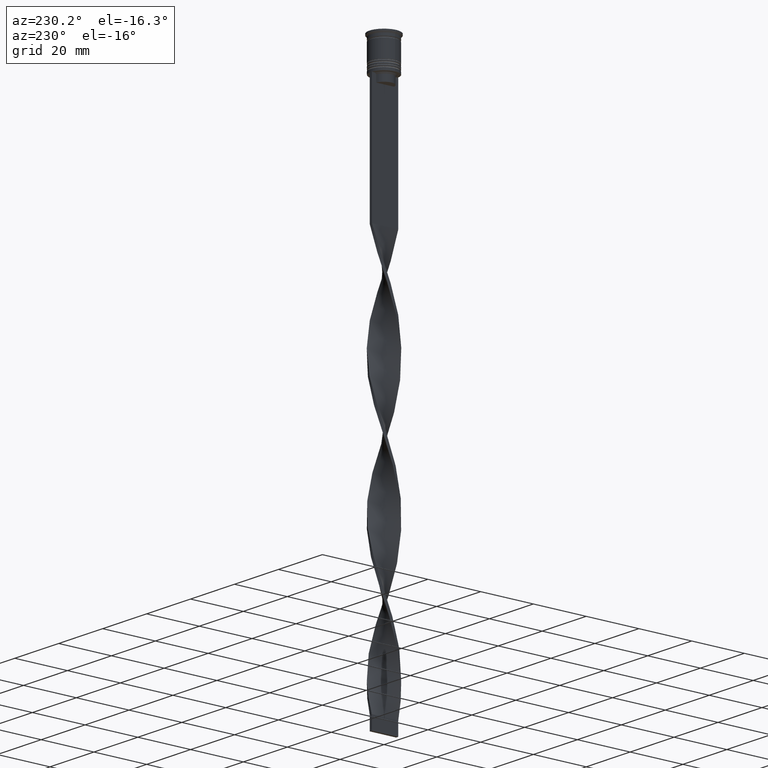
[diagram: clean part render]
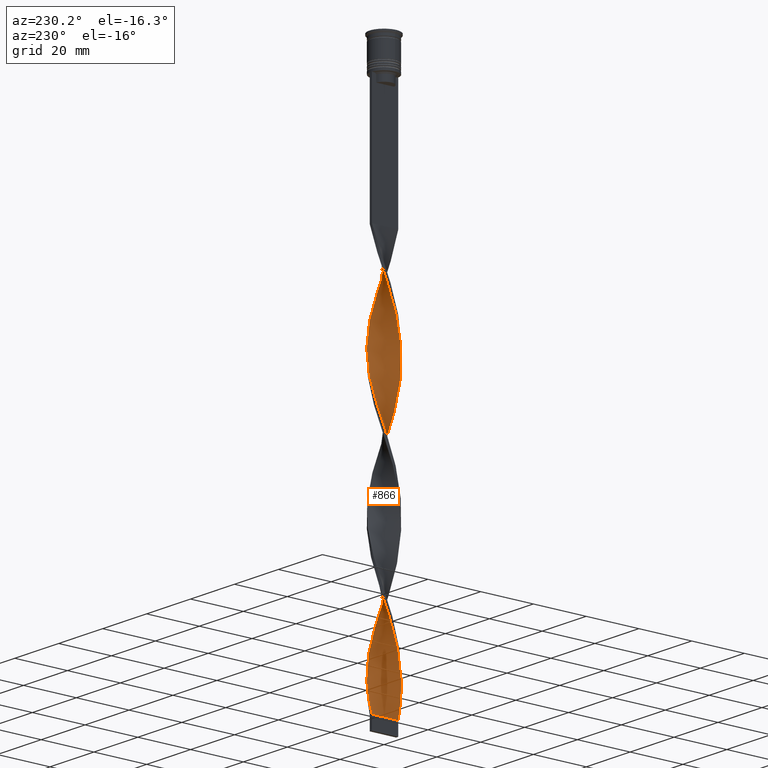
[diagram: same view with one face highlighted and labeled with its STEP entity id]
A machine part, auxiliary view. The second image highlights one B-rep face of the part: STEP entity #866.
In plain terms, the highlighted face is a freeform B-spline surface patch.
Its self-contained STEP definition (entity closure, byte-faithful):
#4 = CARTESIAN_POINT ( 'NONE',  ( -2.272444445637943122, -4.481740313928203712, -201.6568627450980387 ) ) ;
#8 = CARTESIAN_POINT ( 'NONE',  ( 1.410234138924802538, -4.822990739511222813, -160.7549019607842808 ) ) ;
#30 = CARTESIAN_POINT ( 'NONE',  ( -4.252947278887042160, -2.676273424560223546, -140.3039215686274588 ) ) ;
#36 = CARTESIAN_POINT ( 'NONE',  ( 0.5000000000000000000, -4.999999999999999112, -157.8333333333333144 ) ) ;
#52 = CARTESIAN_POINT ( 'NONE',  ( -1.857150046639456153, 4.692313302143462650, -112.5490196078431495 ) ) ;
#56 = CARTESIAN_POINT ( 'NONE',  ( 5.021420494578371141, 0.5021420494578369143, -182.6666666666666572 ) ) ;
#60 = CARTESIAN_POINT ( 'NONE',  ( 0.4272610392408998647, -5.006740257327794374, -111.0882352941176379 ) ) ;
#70 = CARTESIAN_POINT ( 'NONE',  ( 4.252947278887042160, 2.676273424560221770, -90.63725490196078738 ) ) ;
#78 = CARTESIAN_POINT ( 'NONE',  ( -4.945959710900137196, -0.8874021287740051500, -87.71568627450979250 ) ) ;
#95 = CARTESIAN_POINT ( 'NONE',  ( -2.687738844636428759, 4.271167325712942997, -115.4705882352941018 ) ) ;
#116 = CARTESIAN_POINT ( 'NONE',  ( -5.028189627835275566, 0.4290914677958205803, -130.0784313725490335 ) ) ;
#118 = CARTESIAN_POINT ( 'NONE',  ( 0.8912038472716534709, 4.967148691534572613, -203.1176470588235361 ) ) ;
#123 = CARTESIAN_POINT ( 'NONE',  ( -4.533641475362164996, -2.216507476658135189, -92.09803921568628482 ) ) ;
#124 = CARTESIAN_POINT ( 'NONE',  ( -4.672296720828054362, 1.849227771946823751, -78.95098039215686470 ) ) ;
#127 = CARTESIAN_POINT ( 'NONE',  ( 3.426799919866744926, 3.704571868705843762, -147.6078431372548891 ) ) ;
#136 = CARTESIAN_POINT ( 'NONE',  ( 4.252947278887042160, 2.676273424560221770, -189.9705882352941160 ) ) ;
#144 = CARTESIAN_POINT ( 'NONE',  ( 4.004954025026647990, -3.070367026697017110, -124.2352941176470580 ) ) ;
#154 = CARTESIAN_POINT ( 'NONE',  ( 4.533641475362163220, -2.216507476658133413, -173.9019607843137294 ) ) ;
#166 = CARTESIAN_POINT ( 'NONE',  ( -4.291403454590827060, -2.614164568256162280, -93.55882352941176805 ) ) ;
#167 = CARTESIAN_POINT ( 'NONE',  ( 4.049165433819487347, -3.011821659854191147, -71.64705882352943433 ) ) ;
#176 = CARTESIAN_POINT ( 'NONE',  ( -1.339972216233586755, -4.842981980115355078, -151.9901960784313530 ) ) ;
#182 = CARTESIAN_POINT ( 'NONE',  ( 4.863729793964998827, -1.345712789752187000, -77.49019607843138147 ) ) ;
#183 = CARTESIAN_POINT ( 'NONE',  ( -0.4999999999999993339, 4.999999999999999112, -207.5000000000000000 ) ) ;
#188 = CARTESIAN_POINT ( 'NONE',  ( 4.252947278887044824, -2.676273424560221770, -125.6960784313725412 ) ) ;
#191 = CARTESIAN_POINT ( 'NONE',  ( 4.843652908908670618, 1.416275721470217741, -185.5882352941176237 ) ) ;
#196 = CARTESIAN_POINT ( 'NONE',  ( 3.426799919866744482, 3.704571868705843762, -147.6078431372548891 ) ) ;
#197 = CARTESIAN_POINT ( 'NONE',  ( 3.737982676843115915, 3.358196764280017899, -146.1470588235294201 ) ) ;
#207 = CARTESIAN_POINT ( 'NONE',  ( 5.024805061206825130, -0.03652529083100948537, -134.4607843137254974 ) ) ;
#219 = CARTESIAN_POINT ( 'NONE',  ( -1.410234138924802982, -4.822990739511224589, -204.5784313725490335 ) ) ;
#228 = CARTESIAN_POINT ( 'NONE',  ( -2.272444445637943122, -4.481740313928203712, -102.3235294117646959 ) ) ;
#241 = CARTESIAN_POINT ( 'NONE',  ( -4.945959710900137196, -0.8874021287740051500, -187.0490196078431211 ) ) ;
#259 = CARTESIAN_POINT ( 'NONE',  ( -4.533641475362163220, 2.216507476658134745, -124.2352941176470580 ) ) ;
#274 = CARTESIAN_POINT ( 'NONE',  ( -3.737982676843116803, -3.358196764280017010, -195.8137254901960773 ) ) ;
#278 = CARTESIAN_POINT ( 'NONE',  ( 4.932536701743520879, 0.9592088854640268281, -84.79411764705882604 ) ) ;
#296 = CARTESIAN_POINT ( 'NONE',  ( -5.021420494578373805, 0.5021420494578375804, -182.6666666666666856 ) ) ;
#300 = CARTESIAN_POINT ( 'NONE',  ( 5.021420494578371141, 0.5021420494578369143, -83.33333333333332860 ) ) ;
#320 = CARTESIAN_POINT ( 'NONE',  ( -3.688768818211570100, -3.412181795536400664, -143.2254901960784537 ) ) ;
#324 = CARTESIAN_POINT ( 'NONE',  ( 4.672296720828054362, -1.849227771946825527, -128.6176470588235361 ) ) ;
#336 = CARTESIAN_POINT ( 'NONE',  ( -4.843652908908670618, -1.416275721470218185, -135.9215686274509665 ) ) ;
#340 = CARTESIAN_POINT ( 'NONE',  ( 0.03668176878985138917, -5.046331823121015248, -156.3725490196078454 ) ) ;
#359 = CARTESIAN_POINT ( 'NONE',  ( 4.863729793964998827, -1.345712789752187000, -77.49019607843136725 ) ) ;
#371 = CARTESIAN_POINT ( 'NONE',  ( -4.932536701743521768, 0.9592088854640273832, -81.87254901960783116 ) ) ;
#372 = CARTESIAN_POINT ( 'NONE',  ( 5.021420494578372917, -0.5021420494578382465, -133.0000000000000000 ) ) ;
#381 = CARTESIAN_POINT ( 'NONE',  ( 4.698685634663579691, -1.781110133205159762, -76.02941176470586981 ) ) ;
#391 = CARTESIAN_POINT ( 'NONE',  ( -5.021420494578372917, 0.5021420494578375804, -83.33333333333332860 ) ) ;
#399 = CARTESIAN_POINT ( 'NONE',  ( -0.03668176878985203448, 5.046331823121015248, -106.7058823529411882 ) ) ;
#401 = CARTESIAN_POINT ( 'NONE',  ( -0.03668176878985203448, 5.046331823121015248, -206.0392156862745026 ) ) ;
#405 = FACE_OUTER_BOUND ( 'NONE', #653, .T. ) ;
#417 = CARTESIAN_POINT ( 'NONE',  ( -4.533641475362163220, 2.216507476658134745, -124.2352941176470580 ) ) ;
#426 = CARTESIAN_POINT ( 'NONE',  ( -4.863729793965000603, -1.345712789752187222, -89.17647058823527573 ) ) ;
#445 = CARTESIAN_POINT ( 'NONE',  ( -1.339972216233586977, 4.842981980115355967, -64.34313725490196134 ) ) ;
#450 = CARTESIAN_POINT ( 'NONE',  ( -0.5000000000000006661, -5.000000000000000888, -207.5000000000000000 ) ) ;
#465 = CARTESIAN_POINT ( 'NONE',  ( -0.4272610392409009750, 5.006740257327794374, -160.7549019607842808 ) ) ;
#475 = CARTESIAN_POINT ( 'NONE',  ( 4.004954025026647102, 3.070367026697015778, -191.4313725490196134 ) ) ;
#488 = CARTESIAN_POINT ( 'NONE',  ( -4.843652908908672394, 1.416275721470217963, -179.7450980392157192 ) ) ;
#495 = CARTESIAN_POINT ( 'NONE',  ( 2.687738844636428759, -4.271167325712942997, -165.1372549019608016 ) ) ;
#500 = CARTESIAN_POINT ( 'NONE',  ( -1.788740585195521815, 4.718815268696139320, -165.1372549019608016 ) ) ;
#509 = CARTESIAN_POINT ( 'NONE',  ( 4.945959710900135420, -0.8874021287740040398, -178.2843137254901933 ) ) ;
#517 = CARTESIAN_POINT ( 'NONE',  ( -4.291403454590827060, -2.614164568256162280, -192.8921568627450824 ) ) ;
#539 = CARTESIAN_POINT ( 'NONE',  ( -5.024805061206825130, 0.03652529083100775065, -184.1274509803921546 ) ) ;
#562 = CARTESIAN_POINT ( 'NONE',  ( 0.8912038472716534709, 4.967148691534572613, -103.7843137254901933 ) ) ;
#580 = CARTESIAN_POINT ( 'NONE',  ( 4.291403454590825284, -2.614164568256161836, -172.4411764705882035 ) ) ;
#595 = CARTESIAN_POINT ( 'NONE',  ( -4.698685634663581467, -1.781110133205160206, -189.9705882352941160 ) ) ;
#599 = CARTESIAN_POINT ( 'NONE',  ( -4.932536701743520879, -0.9592088854640250517, -134.4607843137254974 ) ) ;
#606 = CARTESIAN_POINT ( 'NONE',  ( 4.843652908908673282, -1.416275721470216187, -130.0784313725490335 ) ) ;
#623 = CARTESIAN_POINT ( 'NONE',  ( -4.698685634663580579, 1.781110133205158430, -125.6960784313725412 ) ) ;
#635 = CARTESIAN_POINT ( 'NONE',  ( -1.410234138924801428, 4.822990739511222813, -111.0882352941176379 ) ) ;
#639 = CARTESIAN_POINT ( 'NONE',  ( -4.049165433819488236, 3.011821659854190703, -121.3137254901960631 ) ) ;
#644 = LINE ( 'NONE', #3388, #3685 ) ;
#653 = EDGE_LOOP ( 'NONE', ( #2607, #3656, #967, #2386 ) ) ;
#654 = CARTESIAN_POINT ( 'NONE',  ( 0.5000000000000000000, -4.999999999999999112, -58.50000000000000000 ) ) ;
#658 = CARTESIAN_POINT ( 'NONE',  ( -0.4999999999999993339, 4.999999999999999112, -207.5000000000000000 ) ) ;
#680 = CARTESIAN_POINT ( 'NONE',  ( 3.057269382251585288, -3.987869597209392936, -67.26470588235292780 ) ) ;
#688 = CARTESIAN_POINT ( 'NONE',  ( 4.500940532747438994, -2.282179822423430871, -127.1568627450980102 ) ) ;
#698 = CARTESIAN_POINT ( 'NONE',  ( 4.672296720828052585, 1.849227771946823973, -87.71568627450979250 ) ) ;
#715 = CARTESIAN_POINT ( 'NONE',  ( 0.4272610392409007529, 5.006740257327792598, -105.2450980392156765 ) ) ;
#717 = CARTESIAN_POINT ( 'NONE',  ( 4.500940532747437217, 2.282179822423429982, -188.5098039215686185 ) ) ;
#721 = CARTESIAN_POINT ( 'NONE',  ( -3.057269382251586176, -3.987869597209393824, -99.40196078431372939 ) ) ;
#744 = VERTEX_POINT ( 'NONE', #3917 ) ;
#745 = CARTESIAN_POINT ( 'NONE',  ( -2.998973759622457269, 4.031892407926575217, -70.18627450980390847 ) ) ;
#763 = CARTESIAN_POINT ( 'NONE',  ( 3.426799919866742705, -3.704571868705843318, -68.72549019607842524 ) ) ;
#774 = CARTESIAN_POINT ( 'NONE',  ( 3.688768818211569211, 3.412181795536400664, -192.8921568627450824 ) ) ;
#780 = CARTESIAN_POINT ( 'NONE',  ( -4.698685634663581467, -1.781110133205160206, -90.63725490196078738 ) ) ;
#781 = CARTESIAN_POINT ( 'NONE',  ( 4.533641475362163220, -2.216507476658133413, -74.56862745098038658 ) ) ;
#785 = CARTESIAN_POINT ( 'NONE',  ( -3.737982676843116803, -3.358196764280017010, -96.48039215686274872 ) ) ;
#786 = CARTESIAN_POINT ( 'NONE',  ( -3.057269382251586176, -3.987869597209393824, -99.40196078431372939 ) ) ;
#792 = CARTESIAN_POINT ( 'NONE',  ( -1.788740585195520039, -4.718815268696138432, -150.5294117647058840 ) ) ;
#806 = CARTESIAN_POINT ( 'NONE',  ( 5.028189627835276454, -0.4290914677958224122, -80.41176470588234793 ) ) ;
#821 = CARTESIAN_POINT ( 'NONE',  ( 4.049165433819487347, 3.011821659854193811, -144.6862745098039227 ) ) ;
#833 = CARTESIAN_POINT ( 'NONE',  ( -0.8912038472716528048, 4.967148691534573501, -162.2156862745098351 ) ) ;
#836 = CARTESIAN_POINT ( 'NONE',  ( 3.737982676843115915, 3.358196764280017899, -146.1470588235294201 ) ) ;
#851 = CARTESIAN_POINT ( 'NONE',  ( -4.252947278887043936, 2.676273424560223102, -175.3627450980391984 ) ) ;
#857 = CARTESIAN_POINT ( 'NONE',  ( 1.339972216233586311, 4.842981980115355078, -102.3235294117646959 ) ) ;
#866 = ADVANCED_FACE ( 'NONE', ( #405 ), #1349, .T. ) ;
#873 = CARTESIAN_POINT ( 'NONE',  ( -4.932536701743521768, 0.9592088854640273832, -181.2058823529411598 ) ) ;
#878 = CARTESIAN_POINT ( 'NONE',  ( 3.057269382251585288, -3.987869597209392936, -166.5980392156862706 ) ) ;
#886 = CARTESIAN_POINT ( 'NONE',  ( -4.004954025026648878, 3.070367026697015778, -74.56862745098038658 ) ) ;
#896 = CARTESIAN_POINT ( 'NONE',  ( -1.410234138924801428, 4.822990739511222813, -111.0882352941176379 ) ) ;
#916 = CARTESIAN_POINT ( 'NONE',  ( 5.024805061206822465, 0.03652529083100720941, -81.87254901960783116 ) ) ;
#931 = CARTESIAN_POINT ( 'NONE',  ( -1.788740585195521815, 4.718815268696139320, -65.80392156862745878 ) ) ;
#941 = CARTESIAN_POINT ( 'NONE',  ( -3.737982676843115026, 3.358196764280016566, -119.8529411764705799 ) ) ;
#946 = CARTESIAN_POINT ( 'NONE',  ( -4.672296720828054362, 1.849227771946823751, -78.95098039215686470 ) ) ;
#955 = CARTESIAN_POINT ( 'NONE',  ( -3.372583611396488656, -3.753996564375789990, -144.6862745098039227 ) ) ;
#959 = CARTESIAN_POINT ( 'NONE',  ( 2.207052246521970851, 4.514301760086748772, -198.7352941176470722 ) ) ;
#967 = ORIENTED_EDGE ( 'NONE', *, *, #3412, .F. ) ;
#974 = CARTESIAN_POINT ( 'NONE',  ( 2.687738844636428759, -4.271167325712942997, -65.80392156862745878 ) ) ;
#978 = CARTESIAN_POINT ( 'NONE',  ( 4.004954025026647102, 3.070367026697015778, -191.4313725490196134 ) ) ;
#983 = CARTESIAN_POINT ( 'NONE',  ( -4.049165433819489124, -3.011821659854192479, -95.01960784313725128 ) ) ;
#995 = CARTESIAN_POINT ( 'NONE',  ( 5.028189627835276454, -0.4290914677958224122, -80.41176470588234793 ) ) ;
#998 = CARTESIAN_POINT ( 'NONE',  ( 4.672296720828052585, 1.849227771946823973, -187.0490196078431211 ) ) ;
#1002 = CARTESIAN_POINT ( 'NONE',  ( -3.426799919866744037, -3.704571868705844206, -97.94117647058824616 ) ) ;
#1009 = CARTESIAN_POINT ( 'NONE',  ( -3.057269382251585732, 3.987869597209392047, -116.9313725490195992 ) ) ;
#1018 = CARTESIAN_POINT ( 'NONE',  ( -2.207052246521971739, 4.514301760086749660, -67.26470588235292780 ) ) ;
#1024 = CARTESIAN_POINT ( 'NONE',  ( -0.4999999999999993339, 4.999999999999999112, -207.5000000000000000 ) ) ;
#1027 = CARTESIAN_POINT ( 'NONE',  ( 3.426799919866743149, -3.704571868705843318, -168.0588235294117680 ) ) ;
#1035 = CARTESIAN_POINT ( 'NONE',  ( -3.688768818211570100, 3.412181795536402440, -73.10784313725488914 ) ) ;
#1049 = CARTESIAN_POINT ( 'NONE',  ( 1.788740585195521593, 4.718815268696137544, -200.1960784313725696 ) ) ;
#1057 = CARTESIAN_POINT ( 'NONE',  ( -4.500940532747438994, 2.282179822423430871, -77.49019607843138147 ) ) ;
#1075 = CARTESIAN_POINT ( 'NONE',  ( -3.688768818211570100, 3.412181795536402440, -172.4411764705882035 ) ) ;
#1084 = CARTESIAN_POINT ( 'NONE',  ( -0.4272610392408992541, -5.006740257327792598, -154.9117647058823479 ) ) ;
#1090 = CARTESIAN_POINT ( 'NONE',  ( 4.945959710900135420, -0.8874021287740040398, -78.95098039215686470 ) ) ;
#1109 = CARTESIAN_POINT ( 'NONE',  ( 4.863729793965001491, 1.345712789752185889, -138.8431372549019045 ) ) ;
#1124 = CARTESIAN_POINT ( 'NONE',  ( -3.057269382251586176, -3.987869597209393824, -198.7352941176470722 ) ) ;
#1142 = CARTESIAN_POINT ( 'NONE',  ( -1.857150046639457708, -4.692313302143463538, -203.1176470588235361 ) ) ;
#1148 = VERTEX_POINT ( 'NONE', #450 ) ;
#1152 = CARTESIAN_POINT ( 'NONE',  ( -2.998973759622457269, 4.031892407926575217, -70.18627450980390847 ) ) ;
#1164 = CARTESIAN_POINT ( 'NONE',  ( 2.998973759622456825, 4.031892407926573441, -96.48039215686274872 ) ) ;
#1185 = CARTESIAN_POINT ( 'NONE',  ( -4.843652908908672394, 1.416275721470217741, -179.7450980392157476 ) ) ;
#1189 = CARTESIAN_POINT ( 'NONE',  ( -5.024805061206823353, -0.03652529083100779922, -131.5392156862745310 ) ) ;
#1208 = CARTESIAN_POINT ( 'NONE',  ( -4.945959710900135420, 0.8874021287740058161, -128.6176470588235361 ) ) ;
#1226 = CARTESIAN_POINT ( 'NONE',  ( 0.4272610392409007529, 5.006740257327792598, -105.2450980392156765 ) ) ;
#1234 = CARTESIAN_POINT ( 'NONE',  ( -4.252947278887043936, 2.676273424560223102, -76.02941176470586981 ) ) ;
#1246 = CARTESIAN_POINT ( 'NONE',  ( -4.945959710900135420, 0.8874021287740058161, -128.6176470588235361 ) ) ;
#1250 = CARTESIAN_POINT ( 'NONE',  ( -0.4272610392408992541, -5.006740257327792598, -154.9117647058823479 ) ) ;
#1265 = CARTESIAN_POINT ( 'NONE',  ( -3.426799919866742261, 3.704571868705843318, -118.3921568627451109 ) ) ;
#1269 = CARTESIAN_POINT ( 'NONE',  ( 4.932536701743520879, 0.9592088854640268281, -184.1274509803921546 ) ) ;
#1274 = CARTESIAN_POINT ( 'NONE',  ( -5.021420494578373805, 0.5021420494578375804, -83.33333333333332860 ) ) ;
#1275 = CARTESIAN_POINT ( 'NONE',  ( 2.998973759622457269, -4.031892407926575217, -119.8529411764705799 ) ) ;
#1287 = CARTESIAN_POINT ( 'NONE',  ( 2.625363907848422773, 4.309788251477359111, -97.94117647058824616 ) ) ;
#1312 = CARTESIAN_POINT ( 'NONE',  ( 5.024805061206822465, 0.03652529083100720941, -81.87254901960783116 ) ) ;
#1319 = CARTESIAN_POINT ( 'NONE',  ( 0.5000000000000000000, 5.000000000000000888, -58.50000000000000000 ) ) ;
#1330 = CARTESIAN_POINT ( 'NONE',  ( 5.021420494578372029, 0.5021420494578369143, -182.6666666666666856 ) ) ;
#1336 = CARTESIAN_POINT ( 'NONE',  ( -0.9633182312101485900, -4.953668176878986529, -106.7058823529412024 ) ) ;
#1345 = CARTESIAN_POINT ( 'NONE',  ( 0.5000000000000000000, -4.999999999999999112, -157.8333333333333144 ) ) ;
#1347 = CARTESIAN_POINT ( 'NONE',  ( 4.291403454590827948, 2.614164568256161836, -143.2254901960784537 ) ) ;
#1349 =( BOUNDED_SURFACE ( )  B_SPLINE_SURFACE ( 1, 2, ( 
 ( #1319, #1930, #1912, #3121, #445, #3138, #1018, #3759, #745, #3799, #1035, #2829, #3153, #1057, #124, #1607, #2850, #391, #2223, #2259, #78, #426, #2242, #1946, #3470, #983, #3434, #1002, #721, #2866, #2884, #3172, #3492, #1336, #3452, #2205, #60, #1644, #2572, #1971, #2284, #3193, #1275, #1587, #1660, #144, #1353, #688, #2589, #3513, #1891, #372, #2814, #2506, #3738, #1109, #2646, #2027, #1679, #821, #836, #196, #2958, #3587, #2060, #1410, #2902, #2042, #1396, #2339, #465, #2315, #3259, #500, #3243, #3835, #3873, #1717, #1075, #2941, #3911, #3207, #3573, #488, #3277, #2670, #539, #2367, #241, #2985, #2611, #2004, #517, #2628, #1762, #3893, #1124, #1701, #3552, #1142, #219, #2924, #1734 ),
 ( #1433, #2351, #1456, #2688, #2300, #3533, #3853, #763, #1988, #167, #1379, #781, #3225, #182, #1090, #806, #916, #300, #278, #1554, #3366, #1782, #3302, #3340, #1497, #3958, #1164, #2143, #2162, #3383, #857, #562, #1226, #2458, #3977, #1516, #896, #3003, #3671, #3694, #3048, #1846, #941, #639, #2748, #259, #623, #2729, #1208, #1474, #1189, #3068, #599, #2122, #2705, #2434, #1823, #3930, #320, #2789, #2085, #1535, #3320, #1864, #2767, #3090, #1250, #340, #36, #2392, #8, #2413, #3632, #3607, #878, #3023, #1801, #2104, #580, #3652, #3775, #1940, #3165, #2236, #2253, #56, #1269, #3755, #998, #717, #2566, #978, #2179, #2862, #3148, #2500, #959, #3402, #2219, #118, #1602, #401, #658 ) ),
 .UNSPECIFIED., .F., .F., .F. ) 
 B_SPLINE_SURFACE_WITH_KNOTS ( ( 2, 2 ),
 ( 3, 2, 2, 2, 2, 2, 2, 2, 2, 2, 2, 2, 2, 2, 2, 2, 2, 2, 2, 2, 2, 2, 2, 2, 2, 2, 2, 2, 2, 2, 2, 2, 2, 2, 2, 2, 2, 2, 2, 2, 2, 2, 2, 2, 2, 2, 2, 2, 2, 2, 2, 3 ),
 ( 0.000000000000000000, 1.000000000000000000 ),
 ( 0.000000000000000000, 0.01470588235294117627, 0.02941176470588235253, 0.04411764705882353227, 0.05882352941176470507, 0.07352941176470588480, 0.08823529411764706454, 0.1029411764705882304, 0.1176470588235294101, 0.1323529411764705899, 0.1470588235294117696, 0.1617647058823529493, 0.1764705882352941291, 0.1911764705882352811, 0.2058823529411764608, 0.2205882352941176405, 0.2352941176470588203, 0.2500000000000000000, 0.2647058823529411797, 0.2794117647058823595, 0.2941176470588235392, 0.3088235294117647189, 0.3235294117647058987, 0.3382352941176470784, 0.3529411764705882582, 0.3676470588235294379, 0.3823529411764705621, 0.3970588235294117418, 0.4117647058823529216, 0.4264705882352941013, 0.4411764705882352811, 0.4558823529411764608, 0.4705882352941176405, 0.4852941176470588203, 0.5000000000000000000, 0.5147058823529411242, 0.5294117647058823595, 0.5441176470588234837, 0.5588235294117647189, 0.5735294117647058432, 0.5882352941176470784, 0.6029411764705882026, 0.6176470588235294379, 0.6323529411764705621, 0.6470588235294117974, 0.6617647058823529216, 0.6764705882352941568, 0.6911764705882352811, 0.7058823529411765163, 0.7205882352941176405, 0.7352941176470588758, 0.7500000000000000000 ),
 .UNSPECIFIED. ) 
 GEOMETRIC_REPRESENTATION_ITEM ( )  RATIONAL_B_SPLINE_SURFACE ( (
 ( 1.000000000000000000, 0.9957341762950344677, 1.000000000000000000, 0.9957341762950344677, 1.000000000000000000, 0.9957341762950344677, 1.000000000000000000, 0.9957341762950344677, 1.000000000000000000, 0.9957341762950344677, 1.000000000000000000, 0.9957341762950344677, 1.000000000000000000, 0.9957341762950344677, 1.000000000000000000, 0.9957341762950344677, 1.000000000000000000, 0.9957341762950344677, 1.000000000000000000, 0.9957341762950344677, 1.000000000000000000, 0.9957341762950344677, 1.000000000000000000, 0.9957341762950344677, 1.000000000000000000, 0.9957341762950344677, 1.000000000000000000, 0.9957341762950344677, 1.000000000000000000, 0.9957341762950344677, 1.000000000000000000, 0.9957341762950344677, 1.000000000000000000, 0.9957341762950344677, 1.000000000000000000, 0.9957341762950344677, 1.000000000000000000, 0.9957341762950344677, 1.000000000000000000, 0.9957341762950344677, 1.000000000000000000, 0.9957341762950344677, 1.000000000000000000, 0.9957341762950344677, 1.000000000000000000, 0.9957341762950344677, 1.000000000000000000, 0.9957341762950344677, 1.000000000000000000, 0.9957341762950344677, 1.000000000000000000, 0.9957341762950344677, 1.000000000000000000, 0.9957341762950344677, 1.000000000000000000, 0.9957341762950344677, 1.000000000000000000, 0.9957341762950344677, 1.000000000000000000, 0.9957341762950344677, 1.000000000000000000, 0.9957341762950344677, 1.000000000000000000, 0.9957341762950344677, 1.000000000000000000, 0.9957341762950344677, 1.000000000000000000, 0.9957341762950344677, 1.000000000000000000, 0.9957341762950344677, 1.000000000000000000, 0.9957341762950344677, 1.000000000000000000, 0.9957341762950344677, 1.000000000000000000, 0.9957341762950344677, 1.000000000000000000, 0.9957341762950344677, 1.000000000000000000, 0.9957341762950344677, 1.000000000000000000, 0.9957341762950344677, 1.000000000000000000, 0.9957341762950344677, 1.000000000000000000, 0.9957341762950344677, 1.000000000000000000, 0.9957341762950344677, 1.000000000000000000, 0.9957341762950344677, 1.000000000000000000, 0.9957341762950344677, 1.000000000000000000, 0.9957341762950344677, 1.000000000000000000, 0.9957341762950344677, 1.000000000000000000, 0.9957341762950344677, 1.000000000000000000, 0.9957341762950344677, 1.000000000000000000, 0.9957341762950344677, 1.000000000000000000),
 ( 1.000000000000000000, 0.9957341762950344677, 1.000000000000000000, 0.9957341762950344677, 1.000000000000000000, 0.9957341762950344677, 1.000000000000000000, 0.9957341762950344677, 1.000000000000000000, 0.9957341762950344677, 1.000000000000000000, 0.9957341762950344677, 1.000000000000000000, 0.9957341762950344677, 1.000000000000000000, 0.9957341762950344677, 1.000000000000000000, 0.9957341762950344677, 1.000000000000000000, 0.9957341762950344677, 1.000000000000000000, 0.9957341762950344677, 1.000000000000000000, 0.9957341762950344677, 1.000000000000000000, 0.9957341762950344677, 1.000000000000000000, 0.9957341762950344677, 1.000000000000000000, 0.9957341762950344677, 1.000000000000000000, 0.9957341762950344677, 1.000000000000000000, 0.9957341762950344677, 1.000000000000000000, 0.9957341762950344677, 1.000000000000000000, 0.9957341762950344677, 1.000000000000000000, 0.9957341762950344677, 1.000000000000000000, 0.9957341762950344677, 1.000000000000000000, 0.9957341762950344677, 1.000000000000000000, 0.9957341762950344677, 1.000000000000000000, 0.9957341762950344677, 1.000000000000000000, 0.9957341762950344677, 1.000000000000000000, 0.9957341762950344677, 1.000000000000000000, 0.9957341762950344677, 1.000000000000000000, 0.9957341762950344677, 1.000000000000000000, 0.9957341762950344677, 1.000000000000000000, 0.9957341762950344677, 1.000000000000000000, 0.9957341762950344677, 1.000000000000000000, 0.9957341762950344677, 1.000000000000000000, 0.9957341762950344677, 1.000000000000000000, 0.9957341762950344677, 1.000000000000000000, 0.9957341762950344677, 1.000000000000000000, 0.9957341762950344677, 1.000000000000000000, 0.9957341762950344677, 1.000000000000000000, 0.9957341762950344677, 1.000000000000000000, 0.9957341762950344677, 1.000000000000000000, 0.9957341762950344677, 1.000000000000000000, 0.9957341762950344677, 1.000000000000000000, 0.9957341762950344677, 1.000000000000000000, 0.9957341762950344677, 1.000000000000000000, 0.9957341762950344677, 1.000000000000000000, 0.9957341762950344677, 1.000000000000000000, 0.9957341762950344677, 1.000000000000000000, 0.9957341762950344677, 1.000000000000000000, 0.9957341762950344677, 1.000000000000000000, 0.9957341762950344677, 1.000000000000000000, 0.9957341762950344677, 1.000000000000000000, 0.9957341762950344677, 1.000000000000000000) ) ) 
 REPRESENTATION_ITEM ( '' )  SURFACE ( )  );
#1352 = EDGE_CURVE ( 'NONE', #744, #1148, #2571, .T. ) ;
#1353 = CARTESIAN_POINT ( 'NONE',  ( 4.252947278887044824, -2.676273424560221770, -125.6960784313725412 ) ) ;
#1370 = CARTESIAN_POINT ( 'NONE',  ( 4.932536701743520879, 0.9592088854640268281, -184.1274509803921546 ) ) ;
#1379 = CARTESIAN_POINT ( 'NONE',  ( 4.291403454590825284, -2.614164568256161836, -73.10784313725488914 ) ) ;
#1391 = CARTESIAN_POINT ( 'NONE',  ( 3.737982676843115026, -3.358196764280016566, -169.5196078431372371 ) ) ;
#1396 = CARTESIAN_POINT ( 'NONE',  ( 0.5000000000000000000, 5.000000000000000888, -157.8333333333333144 ) ) ;
#1405 = CARTESIAN_POINT ( 'NONE',  ( 5.028189627835276454, -0.4290914677958224122, -179.7450980392157476 ) ) ;
#1410 = CARTESIAN_POINT ( 'NONE',  ( 1.857150046639458152, 4.692313302143463538, -153.4509803921568789 ) ) ;
#1433 = CARTESIAN_POINT ( 'NONE',  ( 0.5000000000000000000, -4.999999999999999112, -58.50000000000000000 ) ) ;
#1456 = CARTESIAN_POINT ( 'NONE',  ( 1.410234138924802538, -4.822990739511222813, -61.42156862745097357 ) ) ;
#1469 = CARTESIAN_POINT ( 'NONE',  ( -2.687738844636430091, -4.271167325712943885, -200.1960784313725696 ) ) ;
#1474 = CARTESIAN_POINT ( 'NONE',  ( -5.028189627835275566, 0.4290914677958205803, -130.0784313725490335 ) ) ;
#1477 = EDGE_CURVE ( 'NONE', #3849, #1822, #3520, .T. ) ;
#1488 = CARTESIAN_POINT ( 'NONE',  ( 0.9633182312101491451, 4.953668176878986529, -156.3725490196078454 ) ) ;
#1492 = CARTESIAN_POINT ( 'NONE',  ( -3.426799919866744482, -3.704571868705844206, -197.2745098039215463 ) ) ;
#1497 = CARTESIAN_POINT ( 'NONE',  ( 3.688768818211569211, 3.412181795536400664, -93.55882352941176805 ) ) ;
#1512 = CARTESIAN_POINT ( 'NONE',  ( -5.028189627835278230, -0.4290914677958230783, -185.5882352941176237 ) ) ;
#1516 = CARTESIAN_POINT ( 'NONE',  ( -0.9633182312101493672, 4.953668176878984752, -109.6274509803921546 ) ) ;
#1525 = CARTESIAN_POINT ( 'NONE',  ( 4.049165433819487347, 3.011821659854193367, -144.6862745098039227 ) ) ;
#1531 = CARTESIAN_POINT ( 'NONE',  ( -1.788740585195521815, 4.718815268696139320, -165.1372549019608016 ) ) ;
#1535 = CARTESIAN_POINT ( 'NONE',  ( -2.625363907848423661, -4.309788251477358223, -147.6078431372548891 ) ) ;
#1549 = CARTESIAN_POINT ( 'NONE',  ( -4.672296720828052585, -1.849227771946823307, -137.3823529411764639 ) ) ;
#1554 = CARTESIAN_POINT ( 'NONE',  ( 4.843652908908670618, 1.416275721470217963, -86.25490196078432348 ) ) ;
#1565 = DIRECTION ( 'NONE',  ( 0.000000000000000000, 1.000000000000000000, 0.000000000000000000 ) ) ;
#1571 = CARTESIAN_POINT ( 'NONE',  ( 1.788740585195521371, -4.718815268696139320, -115.4705882352941018 ) ) ;
#1576 = CARTESIAN_POINT ( 'NONE',  ( 3.426799919866743149, -3.704571868705843318, -68.72549019607842524 ) ) ;
#1587 = CARTESIAN_POINT ( 'NONE',  ( 3.372583611396492209, -3.753996564375790435, -121.3137254901960631 ) ) ;
#1588 = CARTESIAN_POINT ( 'NONE',  ( 1.339972216233587865, -4.842981980115355967, -114.0098039215686185 ) ) ;
#1594 = CARTESIAN_POINT ( 'NONE',  ( 2.207052246521972183, -4.514301760086749660, -116.9313725490195992 ) ) ;
#1599 = CARTESIAN_POINT ( 'NONE',  ( 4.945959710900135420, -0.8874021287740040398, -78.95098039215686470 ) ) ;
#1602 = CARTESIAN_POINT ( 'NONE',  ( 0.4272610392409007529, 5.006740257327792598, -204.5784313725490335 ) ) ;
#1607 = CARTESIAN_POINT ( 'NONE',  ( -4.843652908908672394, 1.416275721470217963, -80.41176470588234793 ) ) ;
#1616 = CARTESIAN_POINT ( 'NONE',  ( -0.9633182312101493672, 4.953668176878983864, -109.6274509803921404 ) ) ;
#1637 = CARTESIAN_POINT ( 'NONE',  ( -4.863729793964998827, 1.345712789752186778, -127.1568627450980244 ) ) ;
#1644 = CARTESIAN_POINT ( 'NONE',  ( 0.8912038472716528048, -4.967148691534573501, -112.5490196078431495 ) ) ;
#1660 = CARTESIAN_POINT ( 'NONE',  ( 3.688768818211570100, -3.412181795536402884, -122.7745098039215605 ) ) ;
#1665 = CARTESIAN_POINT ( 'NONE',  ( -3.426799919866744482, -3.704571868705844206, -97.94117647058824616 ) ) ;
#1679 = CARTESIAN_POINT ( 'NONE',  ( 4.291403454590827948, 2.614164568256161836, -143.2254901960784537 ) ) ;
#1695 = CARTESIAN_POINT ( 'NONE',  ( 1.339972216233586311, 4.842981980115355078, -201.6568627450980387 ) ) ;
#1701 = CARTESIAN_POINT ( 'NONE',  ( -2.687738844636429647, -4.271167325712944773, -200.1960784313725981 ) ) ;
#1711 = CARTESIAN_POINT ( 'NONE',  ( -0.4999999999999993339, 4.999999999999999112, -207.5000000000000000 ) ) ;
#1717 = CARTESIAN_POINT ( 'NONE',  ( -3.372583611396491321, 3.753996564375790879, -170.9803921568627629 ) ) ;
#1728 = CARTESIAN_POINT ( 'NONE',  ( 4.291403454590825284, -2.614164568256161836, -172.4411764705882035 ) ) ;
#1733 = CARTESIAN_POINT ( 'NONE',  ( 2.272444445637943566, 4.481740313928203712, -151.9901960784313530 ) ) ;
#1734 = CARTESIAN_POINT ( 'NONE',  ( -0.5000000000000006661, -5.000000000000000888, -207.5000000000000000 ) ) ;
#1762 = CARTESIAN_POINT ( 'NONE',  ( -3.737982676843116803, -3.358196764280017010, -195.8137254901960773 ) ) ;
#1770 = CARTESIAN_POINT ( 'NONE',  ( -2.625363907848424105, 4.309788251477359999, -68.72549019607842524 ) ) ;
#1778 = CARTESIAN_POINT ( 'NONE',  ( -4.500940532747438105, 2.282179822423430871, -176.8235294117647243 ) ) ;
#1782 = CARTESIAN_POINT ( 'NONE',  ( 4.500940532747437217, 2.282179822423429982, -89.17647058823527573 ) ) ;
#1789 = CARTESIAN_POINT ( 'NONE',  ( -3.688768818211570100, 3.412181795536402440, -73.10784313725488914 ) ) ;
#1795 = CARTESIAN_POINT ( 'NONE',  ( -1.339972216233586977, 4.842981980115355967, -163.6764705882352757 ) ) ;
#1801 = CARTESIAN_POINT ( 'NONE',  ( 3.737982676843115026, -3.358196764280016566, -169.5196078431372371 ) ) ;
#1809 = CARTESIAN_POINT ( 'NONE',  ( -0.4272610392409009750, 5.006740257327794374, -61.42156862745097357 ) ) ;
#1822 = VERTEX_POINT ( 'NONE', #1024 ) ;
#1823 = CARTESIAN_POINT ( 'NONE',  ( -4.252947278887042160, -2.676273424560223546, -140.3039215686274588 ) ) ;
#1841 = CARTESIAN_POINT ( 'NONE',  ( -4.533641475362164996, -2.216507476658135189, -191.4313725490196134 ) ) ;
#1846 = CARTESIAN_POINT ( 'NONE',  ( -3.426799919866742261, 3.704571868705843318, -118.3921568627451109 ) ) ;
#1850 = CARTESIAN_POINT ( 'NONE',  ( 4.004954025026647990, -3.070367026697017110, -124.2352941176470580 ) ) ;
#1860 = CARTESIAN_POINT ( 'NONE',  ( 3.737982676843115026, -3.358196764280016566, -70.18627450980390847 ) ) ;
#1864 = CARTESIAN_POINT ( 'NONE',  ( -1.788740585195520039, -4.718815268696138432, -150.5294117647058840 ) ) ;
#1879 = CARTESIAN_POINT ( 'NONE',  ( -4.698685634663580579, 1.781110133205158430, -125.6960784313725412 ) ) ;
#1891 = CARTESIAN_POINT ( 'NONE',  ( 4.932536701743522656, -0.9592088854640269391, -131.5392156862745310 ) ) ;
#1912 = CARTESIAN_POINT ( 'NONE',  ( -0.4272610392409009750, 5.006740257327794374, -61.42156862745097357 ) ) ;
#1920 = CARTESIAN_POINT ( 'NONE',  ( 2.207052246521970851, 4.514301760086748772, -99.40196078431372939 ) ) ;
#1930 = CARTESIAN_POINT ( 'NONE',  ( 0.03668176878985105610, 5.046331823121016136, -59.96078431372549744 ) ) ;
#1938 = CARTESIAN_POINT ( 'NONE',  ( 4.843652908908670618, 1.416275721470217741, -86.25490196078432348 ) ) ;
#1940 = CARTESIAN_POINT ( 'NONE',  ( 4.863729793964998827, -1.345712789752187000, -176.8235294117647243 ) ) ;
#1946 = CARTESIAN_POINT ( 'NONE',  ( -4.533641475362164996, -2.216507476658135189, -92.09803921568628482 ) ) ;
#1964 = CARTESIAN_POINT ( 'NONE',  ( 4.698685634663579691, -1.781110133205159762, -175.3627450980391984 ) ) ;
#1971 = CARTESIAN_POINT ( 'NONE',  ( 1.788740585195521371, -4.718815268696139320, -115.4705882352940876 ) ) ;
#1983 = CARTESIAN_POINT ( 'NONE',  ( 0.8912038472716534709, 4.967148691534572613, -203.1176470588235361 ) ) ;
#1988 = CARTESIAN_POINT ( 'NONE',  ( 3.737982676843115026, -3.358196764280016566, -70.18627450980390847 ) ) ;
#1998 = CARTESIAN_POINT ( 'NONE',  ( 0.9633182312101489231, -4.953668176878983864, -159.2941176470588118 ) ) ;
#2004 = CARTESIAN_POINT ( 'NONE',  ( -4.533641475362164996, -2.216507476658135189, -191.4313725490196134 ) ) ;
#2020 = CARTESIAN_POINT ( 'NONE',  ( 1.410234138924802538, -4.822990739511222813, -160.7549019607842808 ) ) ;
#2027 = CARTESIAN_POINT ( 'NONE',  ( 4.533641475362164996, 2.216507476658134301, -141.7647058823529562 ) ) ;
#2028 = CARTESIAN_POINT ( 'NONE',  ( -0.5000000000000002220, -1.666666666666667851, -207.5000000000000000 ) ) ;
#2041 = CARTESIAN_POINT ( 'NONE',  ( -4.945959710900137196, -0.8874021287740051500, -87.71568627450979250 ) ) ;
#2042 = CARTESIAN_POINT ( 'NONE',  ( 0.9633182312101491451, 4.953668176878986529, -156.3725490196078454 ) ) ;
#2060 = CARTESIAN_POINT ( 'NONE',  ( 2.272444445637943566, 4.481740313928203712, -151.9901960784313530 ) ) ;
#2080 = CARTESIAN_POINT ( 'NONE',  ( -4.672296720828054362, 1.849227771946823751, -178.2843137254901933 ) ) ;
#2085 = CARTESIAN_POINT ( 'NONE',  ( -2.998973759622455493, -4.031892407926574329, -146.1470588235294201 ) ) ;
#2100 = CARTESIAN_POINT ( 'NONE',  ( -2.625363907848424105, 4.309788251477359999, -168.0588235294117680 ) ) ;
#2104 = CARTESIAN_POINT ( 'NONE',  ( 4.049165433819487347, -3.011821659854191147, -170.9803921568627629 ) ) ;
#2117 = CARTESIAN_POINT ( 'NONE',  ( -4.004954025026648878, 3.070367026697015778, -173.9019607843137294 ) ) ;
#2122 = CARTESIAN_POINT ( 'NONE',  ( -4.843652908908670618, -1.416275721470218185, -135.9215686274509665 ) ) ;
#2138 = CARTESIAN_POINT ( 'NONE',  ( -3.057269382251586176, -3.987869597209393824, -198.7352941176470722 ) ) ;
#2143 = CARTESIAN_POINT ( 'NONE',  ( 2.625363907848422773, 4.309788251477359111, -97.94117647058824616 ) ) ;
#2158 = CARTESIAN_POINT ( 'NONE',  ( 1.857150046639456153, -4.692313302143462650, -62.88235294117647101 ) ) ;
#2162 = CARTESIAN_POINT ( 'NONE',  ( 2.207052246521970851, 4.514301760086748772, -99.40196078431372939 ) ) ;
#2175 = CARTESIAN_POINT ( 'NONE',  ( -2.998973759622455493, -4.031892407926574329, -146.1470588235294201 ) ) ;
#2179 = CARTESIAN_POINT ( 'NONE',  ( 3.688768818211569211, 3.412181795536400664, -192.8921568627450824 ) ) ;
#2184 = CARTESIAN_POINT ( 'NONE',  ( 0.8912038472716528048, -4.967148691534573501, -112.5490196078431495 ) ) ;
#2193 = CARTESIAN_POINT ( 'NONE',  ( 2.272444445637942234, -4.481740313928202823, -64.34313725490196134 ) ) ;
#2205 = CARTESIAN_POINT ( 'NONE',  ( -0.03668176878985068140, -5.046331823121016136, -109.6274509803921546 ) ) ;
#2215 = CARTESIAN_POINT ( 'NONE',  ( 1.410234138924802538, -4.822990739511222813, -61.42156862745097357 ) ) ;
#2216 = CARTESIAN_POINT ( 'NONE',  ( -0.4272610392409009750, 5.006740257327794374, -160.7549019607842808 ) ) ;
#2219 = CARTESIAN_POINT ( 'NONE',  ( 1.339972216233586311, 4.842981980115355078, -201.6568627450980387 ) ) ;
#2223 = CARTESIAN_POINT ( 'NONE',  ( -5.024805061206825130, 0.03652529083100775065, -84.79411764705882604 ) ) ;
#2234 = CARTESIAN_POINT ( 'NONE',  ( 4.932536701743520879, 0.9592088854640268281, -84.79411764705882604 ) ) ;
#2236 = CARTESIAN_POINT ( 'NONE',  ( 5.028189627835276454, -0.4290914677958224122, -179.7450980392157192 ) ) ;
#2242 = CARTESIAN_POINT ( 'NONE',  ( -4.698685634663581467, -1.781110133205160206, -90.63725490196078738 ) ) ;
#2253 = CARTESIAN_POINT ( 'NONE',  ( 5.024805061206822465, 0.03652529083100720941, -181.2058823529411598 ) ) ;
#2259 = CARTESIAN_POINT ( 'NONE',  ( -5.028189627835278230, -0.4290914677958230783, -86.25490196078432348 ) ) ;
#2278 = CARTESIAN_POINT ( 'NONE',  ( 4.049165433819487347, -3.011821659854190703, -170.9803921568627629 ) ) ;
#2284 = CARTESIAN_POINT ( 'NONE',  ( 2.207052246521972183, -4.514301760086749660, -116.9313725490195992 ) ) ;
#2300 = CARTESIAN_POINT ( 'NONE',  ( 2.272444445637942234, -4.481740313928202823, -64.34313725490196134 ) ) ;
#2315 = CARTESIAN_POINT ( 'NONE',  ( -0.8912038472716528048, 4.967148691534573501, -162.2156862745098351 ) ) ;
#2332 = CARTESIAN_POINT ( 'NONE',  ( 2.272444445637942234, -4.481740313928202823, -163.6764705882352757 ) ) ;
#2339 = CARTESIAN_POINT ( 'NONE',  ( 0.03668176878985105610, 5.046331823121016136, -159.2941176470588118 ) ) ;
#2351 = CARTESIAN_POINT ( 'NONE',  ( 0.9633182312101489231, -4.953668176878984752, -59.96078431372549744 ) ) ;
#2361 = CARTESIAN_POINT ( 'NONE',  ( 4.533641475362164996, 2.216507476658134301, -141.7647058823529562 ) ) ;
#2367 = CARTESIAN_POINT ( 'NONE',  ( -5.028189627835278230, -0.4290914677958230783, -185.5882352941176237 ) ) ;
#2376 = CARTESIAN_POINT ( 'NONE',  ( -3.372583611396491321, 3.753996564375790435, -71.64705882352942012 ) ) ;
#2379 = CARTESIAN_POINT ( 'NONE',  ( 1.857150046639458152, 4.692313302143463538, -153.4509803921568789 ) ) ;
#2386 = ORIENTED_EDGE ( 'NONE', *, *, #1352, .F. ) ;
#2392 = CARTESIAN_POINT ( 'NONE',  ( 0.9633182312101489231, -4.953668176878984752, -159.2941176470588118 ) ) ;
#2401 = CARTESIAN_POINT ( 'NONE',  ( 0.5000000000000000000, 5.000000000000000888, -58.50000000000000000 ) ) ;
#2413 = CARTESIAN_POINT ( 'NONE',  ( 1.857150046639456153, -4.692313302143462650, -162.2156862745098351 ) ) ;
#2415 = CARTESIAN_POINT ( 'NONE',  ( 1.410234138924801428, 4.822990739511224589, -154.9117647058823479 ) ) ;
#2430 = CARTESIAN_POINT ( 'NONE',  ( -3.688768818211570100, 3.412181795536402440, -172.4411764705882035 ) ) ;
#2434 = CARTESIAN_POINT ( 'NONE',  ( -4.500940532747438105, -2.282179822423428650, -138.8431372549019045 ) ) ;
#2450 = CARTESIAN_POINT ( 'NONE',  ( -5.024805061206823353, -0.03652529083100779922, -131.5392156862745310 ) ) ;
#2458 = CARTESIAN_POINT ( 'NONE',  ( -0.03668176878985203448, 5.046331823121015248, -106.7058823529412024 ) ) ;
#2477 = CARTESIAN_POINT ( 'NONE',  ( -4.004954025026647102, -3.070367026697014889, -141.7647058823529562 ) ) ;
#2495 = CARTESIAN_POINT ( 'NONE',  ( 4.945959710900137196, 0.8874021287740044839, -137.3823529411764639 ) ) ;
#2496 = CARTESIAN_POINT ( 'NONE',  ( -4.291403454590824396, 2.614164568256162280, -122.7745098039215605 ) ) ;
#2500 = CARTESIAN_POINT ( 'NONE',  ( 2.625363907848422773, 4.309788251477359111, -197.2745098039215463 ) ) ;
#2505 = CARTESIAN_POINT ( 'NONE',  ( -5.024805061206825130, 0.03652529083100775065, -84.79411764705882604 ) ) ;
#2506 = CARTESIAN_POINT ( 'NONE',  ( 5.028189627835278230, 0.4290914677958235779, -135.9215686274509665 ) ) ;
#2516 = CARTESIAN_POINT ( 'NONE',  ( 3.372583611396490433, 3.753996564375789102, -95.01960784313726549 ) ) ;
#2528 = CARTESIAN_POINT ( 'NONE',  ( -4.500940532747438105, 2.282179822423430871, -77.49019607843136725 ) ) ;
#2533 = CARTESIAN_POINT ( 'NONE',  ( -0.9633182312101484790, -4.953668176878986529, -106.7058823529411882 ) ) ;
#2545 = CARTESIAN_POINT ( 'NONE',  ( 2.998973759622456825, 4.031892407926573441, -96.48039215686274872 ) ) ;
#2554 = CARTESIAN_POINT ( 'NONE',  ( -0.5000000000000006661, -5.000000000000000888, -108.1666666666666572 ) ) ;
#2562 = CARTESIAN_POINT ( 'NONE',  ( 2.625363907848422773, 4.309788251477359111, -197.2745098039215463 ) ) ;
#2566 = CARTESIAN_POINT ( 'NONE',  ( 4.252947278887042160, 2.676273424560221770, -189.9705882352941160 ) ) ;
#2571 =( BOUNDED_CURVE ( )  B_SPLINE_CURVE ( 2, ( #2401, #3059, #1809, #2756, #3639, #931, #3079, #1770, #1152, #2376, #1789, #886, #1234, #2528, #946, #3387, #371, #1274, #2505, #3433, #2041, #3572, #780, #123, #166, #2616, #785, #1665, #786, #3577, #228, #3595, #3918, #2533, #2554, #3720, #3780, #2184, #1588, #1571, #1594, #2675, #3901, #3249, #3344, #1850, #188, #2638, #324, #606, #3861, #3675, #207, #2656, #2495, #3885, #2942, #2361, #1347, #1525, #197, #127, #2629, #3471, #1733, #2379, #2415, #1488, #3397, #3055, #2216, #833, #1795, #1531, #3666, #2100, #3584, #3627, #2430, #2117, #851, #1778, #2080, #1185, #873, #296, #3925, #1512, #3064, #3019, #595, #1841, #2725, #3973, #274, #1492, #2138, #1469, #4, #3043, #3316, #2744, #3298 ),
 .UNSPECIFIED., .F., .T. ) 
 B_SPLINE_CURVE_WITH_KNOTS ( ( 3, 2, 2, 2, 2, 2, 2, 2, 2, 2, 2, 2, 2, 2, 2, 2, 2, 2, 2, 2, 2, 2, 2, 2, 2, 2, 2, 2, 2, 2, 2, 2, 2, 2, 2, 2, 2, 2, 2, 2, 2, 2, 2, 2, 2, 2, 2, 2, 2, 2, 2, 3 ),
 ( 0.000000000000000000, 0.01470588235294117453, 0.02941176470588234906, 0.04411764705882353227, 0.05882352941176469813, 0.07352941176470588480, 0.08823529411764706454, 0.1029411764705882443, 0.1176470588235293963, 0.1323529411764705899, 0.1470588235294117696, 0.1617647058823529493, 0.1764705882352941291, 0.1911764705882352811, 0.2058823529411764885, 0.2205882352941176405, 0.2352941176470587925, 0.2500000000000000000, 0.2647058823529411797, 0.2794117647058823595, 0.2941176470588235392, 0.3088235294117647189, 0.3235294117647058987, 0.3382352941176470229, 0.3529411764705882582, 0.3676470588235294379, 0.3823529411764705621, 0.3970588235294117418, 0.4117647058823529771, 0.4264705882352941013, 0.4411764705882352811, 0.4558823529411764608, 0.4705882352941175850, 0.4852941176470588203, 0.5000000000000000000, 0.5147058823529411242, 0.5294117647058823595, 0.5441176470588234837, 0.5588235294117647189, 0.5735294117647058432, 0.5882352941176470784, 0.6029411764705882026, 0.6176470588235294379, 0.6323529411764705621, 0.6470588235294117974, 0.6617647058823529216, 0.6764705882352940458, 0.6911764705882351700, 0.7058823529411765163, 0.7205882352941176405, 0.7352941176470588758, 0.7500000000000000000 ),
 .UNSPECIFIED. ) 
 CURVE ( )  GEOMETRIC_REPRESENTATION_ITEM ( )  RATIONAL_B_SPLINE_CURVE ( ( 1.000000000000000000, 0.9957341762950344677, 1.000000000000000000, 0.9957341762950344677, 1.000000000000000000, 0.9957341762950344677, 1.000000000000000000, 0.9957341762950344677, 1.000000000000000000, 0.9957341762950344677, 1.000000000000000000, 0.9957341762950344677, 1.000000000000000000, 0.9957341762950344677, 1.000000000000000000, 0.9957341762950344677, 1.000000000000000000, 0.9957341762950344677, 1.000000000000000000, 0.9957341762950344677, 1.000000000000000000, 0.9957341762950344677, 1.000000000000000000, 0.9957341762950344677, 1.000000000000000000, 0.9957341762950344677, 1.000000000000000000, 0.9957341762950344677, 1.000000000000000000, 0.9957341762950344677, 1.000000000000000000, 0.9957341762950344677, 1.000000000000000000, 0.9957341762950344677, 1.000000000000000000, 0.9957341762950344677, 1.000000000000000000, 0.9957341762950344677, 1.000000000000000000, 0.9957341762950344677, 1.000000000000000000, 0.9957341762950344677, 1.000000000000000000, 0.9957341762950344677, 1.000000000000000000, 0.9957341762950344677, 1.000000000000000000, 0.9957341762950344677, 1.000000000000000000, 0.9957341762950344677, 1.000000000000000000, 0.9957341762950344677, 1.000000000000000000, 0.9957341762950344677, 1.000000000000000000, 0.9957341762950344677, 1.000000000000000000, 0.9957341762950344677, 1.000000000000000000, 0.9957341762950344677, 1.000000000000000000, 0.9957341762950344677, 1.000000000000000000, 0.9957341762950344677, 1.000000000000000000, 0.9957341762950344677, 1.000000000000000000, 0.9957341762950344677, 1.000000000000000000, 0.9957341762950344677, 1.000000000000000000, 0.9957341762950344677, 1.000000000000000000, 0.9957341762950344677, 1.000000000000000000, 0.9957341762950344677, 1.000000000000000000, 0.9957341762950344677, 1.000000000000000000, 0.9957341762950344677, 1.000000000000000000, 0.9957341762950344677, 1.000000000000000000, 0.9957341762950344677, 1.000000000000000000, 0.9957341762950344677, 1.000000000000000000, 0.9957341762950344677, 1.000000000000000000, 0.9957341762950344677, 1.000000000000000000, 0.9957341762950344677, 1.000000000000000000, 0.9957341762950344677, 1.000000000000000000, 0.9957341762950344677, 1.000000000000000000, 0.9957341762950344677, 1.000000000000000000, 0.9957341762950344677, 1.000000000000000000, 0.9957341762950344677, 1.000000000000000000 ) ) 
 REPRESENTATION_ITEM ( '' )  );
#2572 = CARTESIAN_POINT ( 'NONE',  ( 1.339972216233587865, -4.842981980115355967, -114.0098039215686185 ) ) ;
#2580 = CARTESIAN_POINT ( 'NONE',  ( 4.500940532747436329, 2.282179822423429982, -188.5098039215686185 ) ) ;
#2589 = CARTESIAN_POINT ( 'NONE',  ( 4.672296720828054362, -1.849227771946825527, -128.6176470588235361 ) ) ;
#2605 = CARTESIAN_POINT ( 'NONE',  ( 3.372583611396490433, 3.753996564375789102, -194.3529411764705799 ) ) ;
#2607 = ORIENTED_EDGE ( 'NONE', *, *, #3025, .F. ) ;
#2611 = CARTESIAN_POINT ( 'NONE',  ( -4.698685634663581467, -1.781110133205160206, -189.9705882352941160 ) ) ;
#2616 = CARTESIAN_POINT ( 'NONE',  ( -4.049165433819489124, -3.011821659854192035, -95.01960784313726549 ) ) ;
#2622 = CARTESIAN_POINT ( 'NONE',  ( 1.857150046639456153, -4.692313302143462650, -162.2156862745098351 ) ) ;
#2628 = CARTESIAN_POINT ( 'NONE',  ( -4.049165433819489124, -3.011821659854192479, -194.3529411764705799 ) ) ;
#2629 = CARTESIAN_POINT ( 'NONE',  ( 3.057269382251587952, 3.987869597209392047, -149.0686274509803866 ) ) ;
#2638 = CARTESIAN_POINT ( 'NONE',  ( 4.500940532747438105, -2.282179822423430871, -127.1568627450980244 ) ) ;
#2640 = CARTESIAN_POINT ( 'NONE',  ( 0.4272610392409007529, 5.006740257327792598, -204.5784313725490335 ) ) ;
#2646 = CARTESIAN_POINT ( 'NONE',  ( 4.698685634663580579, 1.781110133205161983, -140.3039215686274588 ) ) ;
#2656 = CARTESIAN_POINT ( 'NONE',  ( 5.028189627835278230, 0.4290914677958235779, -135.9215686274509665 ) ) ;
#2670 = CARTESIAN_POINT ( 'NONE',  ( -5.021420494578372917, 0.5021420494578375804, -182.6666666666666572 ) ) ;
#2675 = CARTESIAN_POINT ( 'NONE',  ( 2.625363907848422773, -4.309788251477360888, -118.3921568627451109 ) ) ;
#2688 = CARTESIAN_POINT ( 'NONE',  ( 1.857150046639456153, -4.692313302143462650, -62.88235294117647811 ) ) ;
#2705 = CARTESIAN_POINT ( 'NONE',  ( -4.672296720828052585, -1.849227771946823307, -137.3823529411764639 ) ) ;
#2725 = CARTESIAN_POINT ( 'NONE',  ( -4.291403454590827060, -2.614164568256162280, -192.8921568627450824 ) ) ;
#2729 = CARTESIAN_POINT ( 'NONE',  ( -4.863729793964998827, 1.345712789752186778, -127.1568627450980102 ) ) ;
#2744 = CARTESIAN_POINT ( 'NONE',  ( -0.9633182312101484790, -4.953668176878986529, -206.0392156862745026 ) ) ;
#2748 = CARTESIAN_POINT ( 'NONE',  ( -4.291403454590824396, 2.614164568256162280, -122.7745098039215605 ) ) ;
#2756 = CARTESIAN_POINT ( 'NONE',  ( -0.8912038472716528048, 4.967148691534573501, -62.88235294117647101 ) ) ;
#2767 = CARTESIAN_POINT ( 'NONE',  ( -1.339972216233586755, -4.842981980115355078, -151.9901960784313530 ) ) ;
#2781 = CARTESIAN_POINT ( 'NONE',  ( -4.500940532747437217, -2.282179822423429094, -138.8431372549019329 ) ) ;
#2789 = CARTESIAN_POINT ( 'NONE',  ( -3.372583611396489101, -3.753996564375790435, -144.6862745098039227 ) ) ;
#2803 = CARTESIAN_POINT ( 'NONE',  ( 4.049165433819487347, -3.011821659854190703, -71.64705882352942012 ) ) ;
#2814 = CARTESIAN_POINT ( 'NONE',  ( 5.024805061206825130, -0.03652529083100948537, -134.4607843137254974 ) ) ;
#2822 = CARTESIAN_POINT ( 'NONE',  ( 4.500940532747436329, 2.282179822423429982, -89.17647058823528994 ) ) ;
#2829 = CARTESIAN_POINT ( 'NONE',  ( -4.004954025026648878, 3.070367026697015778, -74.56862745098038658 ) ) ;
#2839 = CARTESIAN_POINT ( 'NONE',  ( -2.272444445637943122, 4.481740313928201935, -114.0098039215686185 ) ) ;
#2850 = CARTESIAN_POINT ( 'NONE',  ( -4.932536701743521768, 0.9592088854640273832, -81.87254901960783116 ) ) ;
#2860 = CARTESIAN_POINT ( 'NONE',  ( 5.021420494578372029, 0.5021420494578369143, -83.33333333333332860 ) ) ;
#2862 = CARTESIAN_POINT ( 'NONE',  ( 3.372583611396490877, 3.753996564375789102, -194.3529411764705799 ) ) ;
#2866 = CARTESIAN_POINT ( 'NONE',  ( -2.687738844636429647, -4.271167325712944773, -100.8627450980392126 ) ) ;
#2884 = CARTESIAN_POINT ( 'NONE',  ( -2.272444445637943122, -4.481740313928203712, -102.3235294117646959 ) ) ;
#2902 = CARTESIAN_POINT ( 'NONE',  ( 1.410234138924801428, 4.822990739511224589, -154.9117647058823479 ) ) ;
#2918 = CARTESIAN_POINT ( 'NONE',  ( -0.03668176878985203448, 5.046331823121015248, -206.0392156862745026 ) ) ;
#2924 = CARTESIAN_POINT ( 'NONE',  ( -0.9633182312101485900, -4.953668176878986529, -206.0392156862745026 ) ) ;
#2928 = CARTESIAN_POINT ( 'NONE',  ( -0.5000000000000006661, -5.000000000000000888, -207.5000000000000000 ) ) ;
#2935 = CARTESIAN_POINT ( 'NONE',  ( -0.8912038472716541371, -4.967148691534571725, -153.4509803921568789 ) ) ;
#2941 = CARTESIAN_POINT ( 'NONE',  ( -4.004954025026648878, 3.070367026697015778, -173.9019607843137294 ) ) ;
#2942 = CARTESIAN_POINT ( 'NONE',  ( 4.698685634663580579, 1.781110133205161983, -140.3039215686274588 ) ) ;
#2958 = CARTESIAN_POINT ( 'NONE',  ( 3.057269382251587952, 3.987869597209392047, -149.0686274509803866 ) ) ;
#2985 = CARTESIAN_POINT ( 'NONE',  ( -4.863729793965000603, -1.345712789752187222, -188.5098039215686185 ) ) ;
#3003 = CARTESIAN_POINT ( 'NONE',  ( -1.857150046639456153, 4.692313302143462650, -112.5490196078431495 ) ) ;
#3011 = CARTESIAN_POINT ( 'NONE',  ( 0.5000000000000000000, -4.999999999999999112, -58.50000000000000000 ) ) ;
#3019 = CARTESIAN_POINT ( 'NONE',  ( -4.863729793965000603, -1.345712789752187222, -188.5098039215686185 ) ) ;
#3023 = CARTESIAN_POINT ( 'NONE',  ( 3.426799919866742705, -3.704571868705843318, -168.0588235294117680 ) ) ;
#3025 = EDGE_CURVE ( 'NONE', #3849, #744, #644, .T. ) ;
#3043 = CARTESIAN_POINT ( 'NONE',  ( -1.857150046639457708, -4.692313302143463538, -203.1176470588235361 ) ) ;
#3048 = CARTESIAN_POINT ( 'NONE',  ( -3.057269382251585732, 3.987869597209392047, -116.9313725490195992 ) ) ;
#3055 = CARTESIAN_POINT ( 'NONE',  ( 0.03668176878985105610, 5.046331823121016136, -159.2941176470588118 ) ) ;
#3059 = CARTESIAN_POINT ( 'NONE',  ( 0.03668176878985105610, 5.046331823121016136, -59.96078431372549034 ) ) ;
#3064 = CARTESIAN_POINT ( 'NONE',  ( -4.945959710900137196, -0.8874021287740051500, -187.0490196078431211 ) ) ;
#3068 = CARTESIAN_POINT ( 'NONE',  ( -5.021420494578371141, -0.5021420494578362481, -133.0000000000000000 ) ) ;
#3079 = CARTESIAN_POINT ( 'NONE',  ( -2.207052246521971739, 4.514301760086749660, -67.26470588235292780 ) ) ;
#3086 = CARTESIAN_POINT ( 'NONE',  ( -4.932536701743520879, -0.9592088854640250517, -134.4607843137254974 ) ) ;
#3090 = CARTESIAN_POINT ( 'NONE',  ( -0.8912038472716541371, -4.967148691534571725, -153.4509803921568789 ) ) ;
#3109 = CARTESIAN_POINT ( 'NONE',  ( -0.4999999999999993339, 4.999999999999999112, -108.1666666666666572 ) ) ;
#3121 = CARTESIAN_POINT ( 'NONE',  ( -0.8912038472716528048, 4.967148691534573501, -62.88235294117647811 ) ) ;
#3128 = CARTESIAN_POINT ( 'NONE',  ( 0.9633182312101489231, -4.953668176878983864, -59.96078431372549034 ) ) ;
#3138 = CARTESIAN_POINT ( 'NONE',  ( -1.788740585195521815, 4.718815268696139320, -65.80392156862747299 ) ) ;
#3145 = CARTESIAN_POINT ( 'NONE',  ( 0.8912038472716534709, 4.967148691534572613, -103.7843137254901791 ) ) ;
#3148 = CARTESIAN_POINT ( 'NONE',  ( 2.998973759622456825, 4.031892407926573441, -195.8137254901960773 ) ) ;
#3153 = CARTESIAN_POINT ( 'NONE',  ( -4.252947278887043936, 2.676273424560223102, -76.02941176470586981 ) ) ;
#3163 = CARTESIAN_POINT ( 'NONE',  ( -4.049165433819488236, 3.011821659854190258, -121.3137254901960773 ) ) ;
#3165 = CARTESIAN_POINT ( 'NONE',  ( 4.945959710900135420, -0.8874021287740040398, -178.2843137254901933 ) ) ;
#3172 = CARTESIAN_POINT ( 'NONE',  ( -1.857150046639457708, -4.692313302143463538, -103.7843137254901933 ) ) ;
#3193 = CARTESIAN_POINT ( 'NONE',  ( 2.625363907848422773, -4.309788251477360888, -118.3921568627451109 ) ) ;
#3207 = CARTESIAN_POINT ( 'NONE',  ( -4.500940532747438994, 2.282179822423430871, -176.8235294117647243 ) ) ;
#3216 = CARTESIAN_POINT ( 'NONE',  ( 0.03668176878985138917, -5.046331823121015248, -156.3725490196078454 ) ) ;
#3225 = CARTESIAN_POINT ( 'NONE',  ( 4.698685634663579691, -1.781110133205159762, -76.02941176470586981 ) ) ;
#3238 = CARTESIAN_POINT ( 'NONE',  ( 3.057269382251585288, -3.987869597209392936, -166.5980392156862706 ) ) ;
#3243 = CARTESIAN_POINT ( 'NONE',  ( -2.207052246521971739, 4.514301760086749660, -166.5980392156862706 ) ) ;
#3249 = CARTESIAN_POINT ( 'NONE',  ( 3.372583611396492209, -3.753996564375789990, -121.3137254901960773 ) ) ;
#3253 = CARTESIAN_POINT ( 'NONE',  ( -2.207052246521973515, -4.514301760086746995, -149.0686274509803866 ) ) ;
#3259 = CARTESIAN_POINT ( 'NONE',  ( -1.339972216233586977, 4.842981980115355967, -163.6764705882352757 ) ) ;
#3277 = CARTESIAN_POINT ( 'NONE',  ( -4.932536701743521768, 0.9592088854640273832, -181.2058823529411598 ) ) ;
#3298 = CARTESIAN_POINT ( 'NONE',  ( -0.5000000000000006661, -5.000000000000000888, -207.5000000000000000 ) ) ;
#3302 = CARTESIAN_POINT ( 'NONE',  ( 4.252947278887042160, 2.676273424560221770, -90.63725490196078738 ) ) ;
#3316 = CARTESIAN_POINT ( 'NONE',  ( -1.410234138924802982, -4.822990739511224589, -204.5784313725490335 ) ) ;
#3320 = CARTESIAN_POINT ( 'NONE',  ( -2.207052246521973515, -4.514301760086746995, -149.0686274509803866 ) ) ;
#3340 = CARTESIAN_POINT ( 'NONE',  ( 4.004954025026647102, 3.070367026697015778, -92.09803921568628482 ) ) ;
#3344 = CARTESIAN_POINT ( 'NONE',  ( 3.688768818211570100, -3.412181795536402884, -122.7745098039215605 ) ) ;
#3366 = CARTESIAN_POINT ( 'NONE',  ( 4.672296720828052585, 1.849227771946823973, -87.71568627450979250 ) ) ;
#3379 = CARTESIAN_POINT ( 'NONE',  ( 3.688768818211569211, 3.412181795536400664, -93.55882352941176805 ) ) ;
#3383 = CARTESIAN_POINT ( 'NONE',  ( 1.788740585195521593, 4.718815268696137544, -100.8627450980392126 ) ) ;
#3387 = CARTESIAN_POINT ( 'NONE',  ( -4.843652908908672394, 1.416275721470217741, -80.41176470588234793 ) ) ;
#3388 = CARTESIAN_POINT ( 'NONE',  ( 0.5000000000000000000, -4.999999999999999112, -58.50000000000000000 ) ) ;
#3397 = CARTESIAN_POINT ( 'NONE',  ( 0.5000000000000000000, 5.000000000000000888, -157.8333333333333144 ) ) ;
#3398 = CARTESIAN_POINT ( 'NONE',  ( -2.625363907848423661, -4.309788251477358223, -147.6078431372548891 ) ) ;
#3402 = CARTESIAN_POINT ( 'NONE',  ( 1.788740585195521593, 4.718815268696137544, -200.1960784313725981 ) ) ;
#3412 = EDGE_CURVE ( 'NONE', #1148, #1822, #3894, .T. ) ;
#3422 = CARTESIAN_POINT ( 'NONE',  ( 4.533641475362163220, -2.216507476658133413, -74.56862745098038658 ) ) ;
#3433 = CARTESIAN_POINT ( 'NONE',  ( -5.028189627835278230, -0.4290914677958230783, -86.25490196078432348 ) ) ;
#3434 = CARTESIAN_POINT ( 'NONE',  ( -3.737982676843116803, -3.358196764280017010, -96.48039215686274872 ) ) ;
#3442 = CARTESIAN_POINT ( 'NONE',  ( 1.339972216233586311, 4.842981980115355078, -102.3235294117646959 ) ) ;
#3452 = CARTESIAN_POINT ( 'NONE',  ( -0.5000000000000006661, -5.000000000000000888, -108.1666666666666572 ) ) ;
#3461 = CARTESIAN_POINT ( 'NONE',  ( -3.737982676843115026, 3.358196764280016566, -119.8529411764705799 ) ) ;
#3470 = CARTESIAN_POINT ( 'NONE',  ( -4.291403454590827060, -2.614164568256162280, -93.55882352941176805 ) ) ;
#3471 = CARTESIAN_POINT ( 'NONE',  ( 2.687738844636429203, 4.271167325712945662, -150.5294117647058840 ) ) ;
#3492 = CARTESIAN_POINT ( 'NONE',  ( -1.410234138924802982, -4.822990739511224589, -105.2450980392156765 ) ) ;
#3513 = CARTESIAN_POINT ( 'NONE',  ( 4.843652908908673282, -1.416275721470216187, -130.0784313725490335 ) ) ;
#3520 =( BOUNDED_CURVE ( )  B_SPLINE_CURVE ( 2, ( #654, #3128, #2215, #2158, #2193, #974, #680, #1576, #1860, #2803, #3750, #3422, #381, #359, #1599, #995, #1312, #2860, #2234, #1938, #698, #2822, #70, #3728, #3379, #2516, #2545, #1287, #1920, #3773, #3442, #3145, #715, #399, #3109, #1616, #635, #52, #2839, #95, #1009, #1265, #3461, #3163, #2496, #417, #1879, #1637, #1246, #116, #2450, #3689, #3086, #336, #1549, #2781, #30, #2477, #3709, #955, #2175, #3398, #3253, #792, #176, #2935, #1084, #3216, #1345, #1998, #2020, #2622, #2332, #495, #3238, #1027, #1391, #2278, #1728, #154, #1964, #3528, #509, #1405, #3830, #1330, #1370, #191, #3847, #2580, #136, #475, #774, #2605, #3808, #2562, #3865, #1049, #1695, #1983, #2640, #2918, #1711 ),
 .UNSPECIFIED., .F., .T. ) 
 B_SPLINE_CURVE_WITH_KNOTS ( ( 3, 2, 2, 2, 2, 2, 2, 2, 2, 2, 2, 2, 2, 2, 2, 2, 2, 2, 2, 2, 2, 2, 2, 2, 2, 2, 2, 2, 2, 2, 2, 2, 2, 2, 2, 2, 2, 2, 2, 2, 2, 2, 2, 2, 2, 2, 2, 2, 2, 2, 2, 3 ),
 ( 0.000000000000000000, 0.01470588235294117453, 0.02941176470588234906, 0.04411764705882353227, 0.05882352941176469813, 0.07352941176470588480, 0.08823529411764706454, 0.1029411764705882443, 0.1176470588235293963, 0.1323529411764705899, 0.1470588235294117696, 0.1617647058823529493, 0.1764705882352941291, 0.1911764705882352811, 0.2058823529411764885, 0.2205882352941176405, 0.2352941176470587925, 0.2500000000000000000, 0.2647058823529411797, 0.2794117647058823595, 0.2941176470588235392, 0.3088235294117647189, 0.3235294117647058987, 0.3382352941176470229, 0.3529411764705882582, 0.3676470588235294379, 0.3823529411764705621, 0.3970588235294117418, 0.4117647058823529771, 0.4264705882352941013, 0.4411764705882352811, 0.4558823529411764608, 0.4705882352941175850, 0.4852941176470588203, 0.5000000000000000000, 0.5147058823529411242, 0.5294117647058823595, 0.5441176470588234837, 0.5588235294117647189, 0.5735294117647058432, 0.5882352941176470784, 0.6029411764705882026, 0.6176470588235294379, 0.6323529411764705621, 0.6470588235294117974, 0.6617647058823529216, 0.6764705882352940458, 0.6911764705882351700, 0.7058823529411765163, 0.7205882352941176405, 0.7352941176470588758, 0.7500000000000000000 ),
 .UNSPECIFIED. ) 
 CURVE ( )  GEOMETRIC_REPRESENTATION_ITEM ( )  RATIONAL_B_SPLINE_CURVE ( ( 1.000000000000000000, 0.9957341762950344677, 1.000000000000000000, 0.9957341762950344677, 1.000000000000000000, 0.9957341762950344677, 1.000000000000000000, 0.9957341762950344677, 1.000000000000000000, 0.9957341762950344677, 1.000000000000000000, 0.9957341762950344677, 1.000000000000000000, 0.9957341762950344677, 1.000000000000000000, 0.9957341762950344677, 1.000000000000000000, 0.9957341762950344677, 1.000000000000000000, 0.9957341762950344677, 1.000000000000000000, 0.9957341762950344677, 1.000000000000000000, 0.9957341762950344677, 1.000000000000000000, 0.9957341762950344677, 1.000000000000000000, 0.9957341762950344677, 1.000000000000000000, 0.9957341762950344677, 1.000000000000000000, 0.9957341762950344677, 1.000000000000000000, 0.9957341762950344677, 1.000000000000000000, 0.9957341762950344677, 1.000000000000000000, 0.9957341762950344677, 1.000000000000000000, 0.9957341762950344677, 1.000000000000000000, 0.9957341762950344677, 1.000000000000000000, 0.9957341762950344677, 1.000000000000000000, 0.9957341762950344677, 1.000000000000000000, 0.9957341762950344677, 1.000000000000000000, 0.9957341762950344677, 1.000000000000000000, 0.9957341762950344677, 1.000000000000000000, 0.9957341762950344677, 1.000000000000000000, 0.9957341762950344677, 1.000000000000000000, 0.9957341762950344677, 1.000000000000000000, 0.9957341762950344677, 1.000000000000000000, 0.9957341762950344677, 1.000000000000000000, 0.9957341762950344677, 1.000000000000000000, 0.9957341762950344677, 1.000000000000000000, 0.9957341762950344677, 1.000000000000000000, 0.9957341762950344677, 1.000000000000000000, 0.9957341762950344677, 1.000000000000000000, 0.9957341762950344677, 1.000000000000000000, 0.9957341762950344677, 1.000000000000000000, 0.9957341762950344677, 1.000000000000000000, 0.9957341762950344677, 1.000000000000000000, 0.9957341762950344677, 1.000000000000000000, 0.9957341762950344677, 1.000000000000000000, 0.9957341762950344677, 1.000000000000000000, 0.9957341762950344677, 1.000000000000000000, 0.9957341762950344677, 1.000000000000000000, 0.9957341762950344677, 1.000000000000000000, 0.9957341762950344677, 1.000000000000000000, 0.9957341762950344677, 1.000000000000000000, 0.9957341762950344677, 1.000000000000000000, 0.9957341762950344677, 1.000000000000000000, 0.9957341762950344677, 1.000000000000000000 ) ) 
 REPRESENTATION_ITEM ( '' )  );
#3528 = CARTESIAN_POINT ( 'NONE',  ( 4.863729793964998827, -1.345712789752187000, -176.8235294117647243 ) ) ;
#3533 = CARTESIAN_POINT ( 'NONE',  ( 2.687738844636428315, -4.271167325712943885, -65.80392156862747299 ) ) ;
#3535 = CARTESIAN_POINT ( 'NONE',  ( -0.4999999999999997780, 1.666666666666666075, -207.5000000000000000 ) ) ;
#3552 = CARTESIAN_POINT ( 'NONE',  ( -2.272444445637943122, -4.481740313928203712, -201.6568627450980387 ) ) ;
#3572 = CARTESIAN_POINT ( 'NONE',  ( -4.863729793965000603, -1.345712789752187222, -89.17647058823528994 ) ) ;
#3573 = CARTESIAN_POINT ( 'NONE',  ( -4.672296720828054362, 1.849227771946823751, -178.2843137254901933 ) ) ;
#3577 = CARTESIAN_POINT ( 'NONE',  ( -2.687738844636430091, -4.271167325712943885, -100.8627450980392126 ) ) ;
#3584 = CARTESIAN_POINT ( 'NONE',  ( -2.998973759622457269, 4.031892407926575217, -169.5196078431372371 ) ) ;
#3587 = CARTESIAN_POINT ( 'NONE',  ( 2.687738844636428759, 4.271167325712946550, -150.5294117647058840 ) ) ;
#3595 = CARTESIAN_POINT ( 'NONE',  ( -1.857150046639457708, -4.692313302143463538, -103.7843137254901791 ) ) ;
#3607 = CARTESIAN_POINT ( 'NONE',  ( 2.687738844636428315, -4.271167325712943885, -165.1372549019608016 ) ) ;
#3627 = CARTESIAN_POINT ( 'NONE',  ( -3.372583611396491321, 3.753996564375790435, -170.9803921568627629 ) ) ;
#3632 = CARTESIAN_POINT ( 'NONE',  ( 2.272444445637942234, -4.481740313928202823, -163.6764705882352757 ) ) ;
#3639 = CARTESIAN_POINT ( 'NONE',  ( -1.339972216233586977, 4.842981980115355967, -64.34313725490196134 ) ) ;
#3652 = CARTESIAN_POINT ( 'NONE',  ( 4.533641475362163220, -2.216507476658133413, -173.9019607843137294 ) ) ;
#3656 = ORIENTED_EDGE ( 'NONE', *, *, #1477, .T. ) ;
#3666 = CARTESIAN_POINT ( 'NONE',  ( -2.207052246521971739, 4.514301760086749660, -166.5980392156862706 ) ) ;
#3671 = CARTESIAN_POINT ( 'NONE',  ( -2.272444445637943122, 4.481740313928201935, -114.0098039215686185 ) ) ;
#3675 = CARTESIAN_POINT ( 'NONE',  ( 5.021420494578373805, -0.5021420494578382465, -133.0000000000000000 ) ) ;
#3685 = VECTOR ( 'NONE', #1565, 1000.000000000000000 ) ;
#3689 = CARTESIAN_POINT ( 'NONE',  ( -5.021420494578372029, -0.5021420494578362481, -133.0000000000000000 ) ) ;
#3694 = CARTESIAN_POINT ( 'NONE',  ( -2.687738844636428315, 4.271167325712943885, -115.4705882352940876 ) ) ;
#3709 = CARTESIAN_POINT ( 'NONE',  ( -3.688768818211570100, -3.412181795536400664, -143.2254901960784537 ) ) ;
#3720 = CARTESIAN_POINT ( 'NONE',  ( -0.03668176878985068140, -5.046331823121016136, -109.6274509803921404 ) ) ;
#3728 = CARTESIAN_POINT ( 'NONE',  ( 4.004954025026647102, 3.070367026697015778, -92.09803921568628482 ) ) ;
#3738 = CARTESIAN_POINT ( 'NONE',  ( 4.945959710900137196, 0.8874021287740044839, -137.3823529411764639 ) ) ;
#3750 = CARTESIAN_POINT ( 'NONE',  ( 4.291403454590825284, -2.614164568256161836, -73.10784313725488914 ) ) ;
#3755 = CARTESIAN_POINT ( 'NONE',  ( 4.843652908908670618, 1.416275721470217963, -185.5882352941176237 ) ) ;
#3759 = CARTESIAN_POINT ( 'NONE',  ( -2.625363907848424105, 4.309788251477359999, -68.72549019607842524 ) ) ;
#3773 = CARTESIAN_POINT ( 'NONE',  ( 1.788740585195521593, 4.718815268696137544, -100.8627450980392126 ) ) ;
#3775 = CARTESIAN_POINT ( 'NONE',  ( 4.698685634663579691, -1.781110133205159762, -175.3627450980391984 ) ) ;
#3780 = CARTESIAN_POINT ( 'NONE',  ( 0.4272610392408998647, -5.006740257327794374, -111.0882352941176379 ) ) ;
#3799 = CARTESIAN_POINT ( 'NONE',  ( -3.372583611396491321, 3.753996564375790879, -71.64705882352943433 ) ) ;
#3808 = CARTESIAN_POINT ( 'NONE',  ( 2.998973759622456825, 4.031892407926573441, -195.8137254901960773 ) ) ;
#3830 = CARTESIAN_POINT ( 'NONE',  ( 5.024805061206822465, 0.03652529083100720941, -181.2058823529411598 ) ) ;
#3835 = CARTESIAN_POINT ( 'NONE',  ( -2.625363907848424105, 4.309788251477359999, -168.0588235294117680 ) ) ;
#3847 = CARTESIAN_POINT ( 'NONE',  ( 4.672296720828052585, 1.849227771946823973, -187.0490196078431211 ) ) ;
#3849 = VERTEX_POINT ( 'NONE', #3011 ) ;
#3853 = CARTESIAN_POINT ( 'NONE',  ( 3.057269382251585288, -3.987869597209392936, -67.26470588235292780 ) ) ;
#3861 = CARTESIAN_POINT ( 'NONE',  ( 4.932536701743522656, -0.9592088854640269391, -131.5392156862745310 ) ) ;
#3865 = CARTESIAN_POINT ( 'NONE',  ( 2.207052246521970851, 4.514301760086748772, -198.7352941176470722 ) ) ;
#3873 = CARTESIAN_POINT ( 'NONE',  ( -2.998973759622457269, 4.031892407926575217, -169.5196078431372371 ) ) ;
#3885 = CARTESIAN_POINT ( 'NONE',  ( 4.863729793965001491, 1.345712789752185667, -138.8431372549019329 ) ) ;
#3893 = CARTESIAN_POINT ( 'NONE',  ( -3.426799919866744037, -3.704571868705844206, -197.2745098039215463 ) ) ;
#3894 = B_SPLINE_CURVE_WITH_KNOTS ( 'NONE', 3,
 ( #2928, #2028, #3535, #183 ),
 .UNSPECIFIED., .F., .F.,
 ( 4, 4 ),
 ( 0.000000000000000000, 1.000000000000000000 ),
 .UNSPECIFIED. ) ;
#3901 = CARTESIAN_POINT ( 'NONE',  ( 2.998973759622457269, -4.031892407926575217, -119.8529411764705799 ) ) ;
#3911 = CARTESIAN_POINT ( 'NONE',  ( -4.252947278887043936, 2.676273424560223102, -175.3627450980391984 ) ) ;
#3917 = CARTESIAN_POINT ( 'NONE',  ( 0.5000000000000000000, 5.000000000000000888, -58.50000000000000000 ) ) ;
#3918 = CARTESIAN_POINT ( 'NONE',  ( -1.410234138924802982, -4.822990739511224589, -105.2450980392156765 ) ) ;
#3925 = CARTESIAN_POINT ( 'NONE',  ( -5.024805061206825130, 0.03652529083100775065, -184.1274509803921546 ) ) ;
#3930 = CARTESIAN_POINT ( 'NONE',  ( -4.004954025026647102, -3.070367026697014889, -141.7647058823529562 ) ) ;
#3958 = CARTESIAN_POINT ( 'NONE',  ( 3.372583611396490877, 3.753996564375789102, -95.01960784313725128 ) ) ;
#3973 = CARTESIAN_POINT ( 'NONE',  ( -4.049165433819489124, -3.011821659854192035, -194.3529411764705799 ) ) ;
#3977 = CARTESIAN_POINT ( 'NONE',  ( -0.4999999999999993339, 4.999999999999999112, -108.1666666666666572 ) ) ;